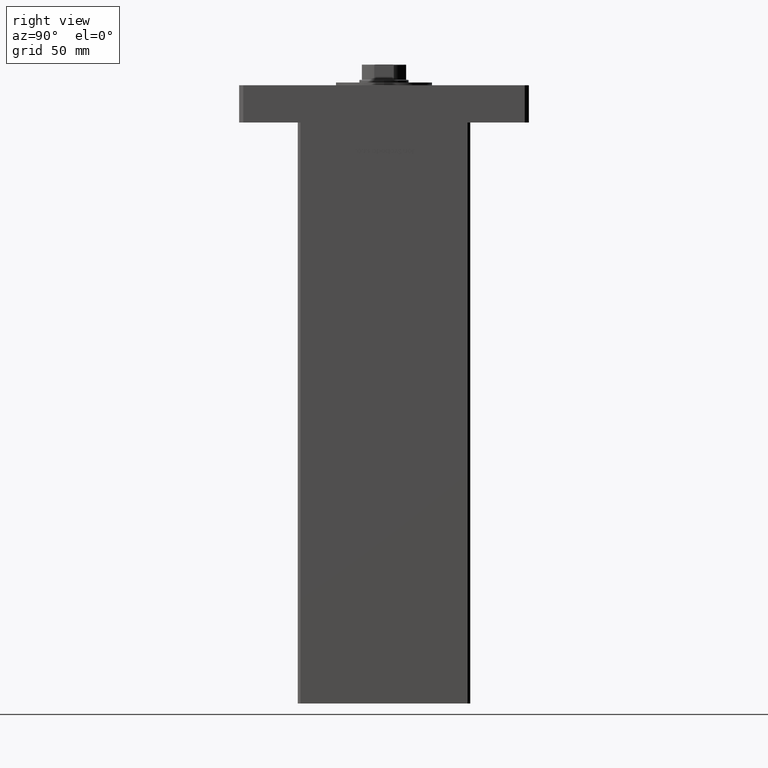
[diagram: clean part render]
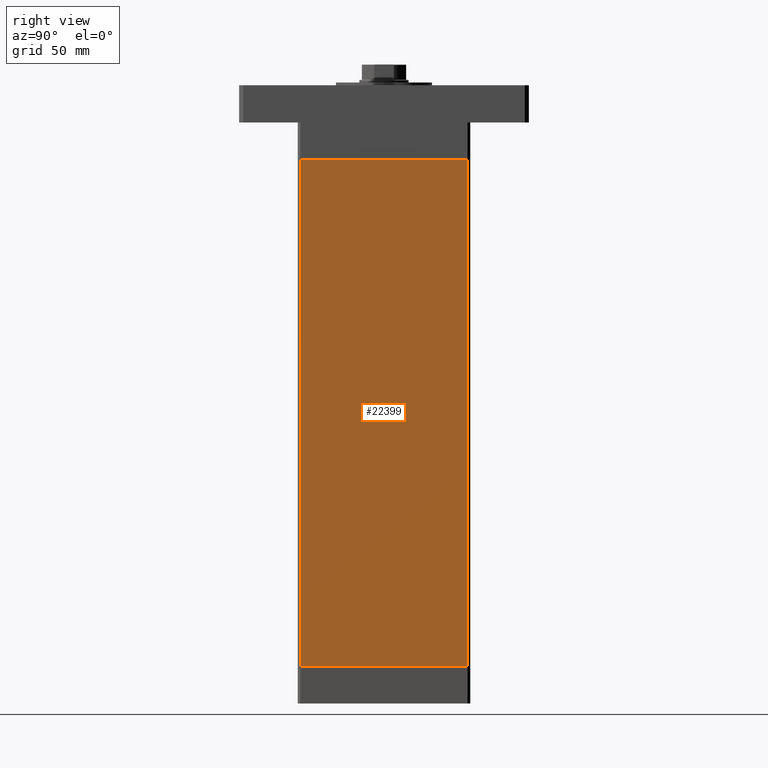
[diagram: same view with one face highlighted and labeled with its STEP entity id]
A machine part, right view. The second image highlights one B-rep face of the part: STEP entity #22399.
In plain terms, the highlighted planar face has unit normal (1, -0, 0).
Its self-contained STEP definition (entity closure, byte-faithful):
#205 = FACE_OUTER_BOUND ( 'NONE', #35173, .T. ) ;
#936 = EDGE_CURVE ( 'NONE', #2615, #34840, #23485, .T. ) ;
#2615 = VERTEX_POINT ( 'NONE', #43498 ) ;
#7048 = ORIENTED_EDGE ( 'NONE', *, *, #7155, .F. ) ;
#7155 = EDGE_CURVE ( 'NONE', #34904, #23481, #12240, .T. ) ;
#8236 = CARTESIAN_POINT ( 'NONE',  ( 74.99999999999998579, -60.50000000000000000, 367.0000000000000000 ) ) ;
#12240 = LINE ( 'NONE', #28636, #34863 ) ;
#13495 = LINE ( 'NONE', #29897, #36698 ) ;
#14805 = EDGE_CURVE ( 'NONE', #2615, #34904, #13495, .T. ) ;
#15440 = ORIENTED_EDGE ( 'NONE', *, *, #936, .T. ) ;
#16324 = ORIENTED_EDGE ( 'NONE', *, *, #14805, .F. ) ;
#19056 = VECTOR ( 'NONE', #27014, 1000.000000000000000 ) ;
#19194 = CARTESIAN_POINT ( 'NONE',  ( 75.00000000000001421, 60.50000000000000000, 367.0000000000000000 ) ) ;
#20938 = PLANE ( 'NONE',  #27478 ) ;
#21828 = DIRECTION ( 'NONE',  ( -0.000000000000000000, -0.000000000000000000, -1.000000000000000000 ) ) ;
#22399 = ADVANCED_FACE ( 'NONE', ( #205 ), #20938, .T. ) ;
#22722 = LINE ( 'NONE', #39138, #19056 ) ;
#23481 = VERTEX_POINT ( 'NONE', #39211 ) ;
#23485 = LINE ( 'NONE', #19194, #50165 ) ;
#25191 = CARTESIAN_POINT ( 'NONE',  ( 75.00000000000001421, 60.50000000000000000, 0.000000000000000000 ) ) ;
#27014 = DIRECTION ( 'NONE',  ( -0.000000000000000000, -0.000000000000000000, -1.000000000000000000 ) ) ;
#27478 = AXIS2_PLACEMENT_3D ( 'NONE', #49468, #37339, #33308 ) ;
#28636 = CARTESIAN_POINT ( 'NONE',  ( 75.00000000000001421, 60.50000000000000000, 0.000000000000000000 ) ) ;
#29897 = CARTESIAN_POINT ( 'NONE',  ( 75.00000000000001421, 60.50000000000000000, 367.0000000000000000 ) ) ;
#33308 = DIRECTION ( 'NONE',  ( 2.293849224432141861E-16, 1.000000000000000000, 0.000000000000000000 ) ) ;
#34840 = VERTEX_POINT ( 'NONE', #8236 ) ;
#34863 = VECTOR ( 'NONE', #45062, 1000.000000000000000 ) ;
#34904 = VERTEX_POINT ( 'NONE', #25191 ) ;
#35173 = EDGE_LOOP ( 'NONE', ( #7048, #16324, #15440, #50223 ) ) ;
#36698 = VECTOR ( 'NONE', #21828, 1000.000000000000000 ) ;
#37339 = DIRECTION ( 'NONE',  ( 1.000000000000000000, -2.293849224432141861E-16, 0.000000000000000000 ) ) ;
#39138 = CARTESIAN_POINT ( 'NONE',  ( 74.99999999999998579, -60.50000000000000000, 367.0000000000000000 ) ) ;
#39211 = CARTESIAN_POINT ( 'NONE',  ( 74.99999999999998579, -60.50000000000000000, 0.000000000000000000 ) ) ;
#42655 = EDGE_CURVE ( 'NONE', #34840, #23481, #22722, .T. ) ;
#43498 = CARTESIAN_POINT ( 'NONE',  ( 75.00000000000001421, 60.50000000000000000, 367.0000000000000000 ) ) ;
#45062 = DIRECTION ( 'NONE',  ( -2.293849224432141861E-16, -1.000000000000000000, 0.000000000000000000 ) ) ;
#48239 = DIRECTION ( 'NONE',  ( -2.293849224432141861E-16, -1.000000000000000000, 0.000000000000000000 ) ) ;
#49468 = CARTESIAN_POINT ( 'NONE',  ( 75.00000000000001421, 60.50000000000000000, 367.0000000000000000 ) ) ;
#50165 = VECTOR ( 'NONE', #48239, 1000.000000000000000 ) ;
#50223 = ORIENTED_EDGE ( 'NONE', *, *, #42655, .T. ) ;